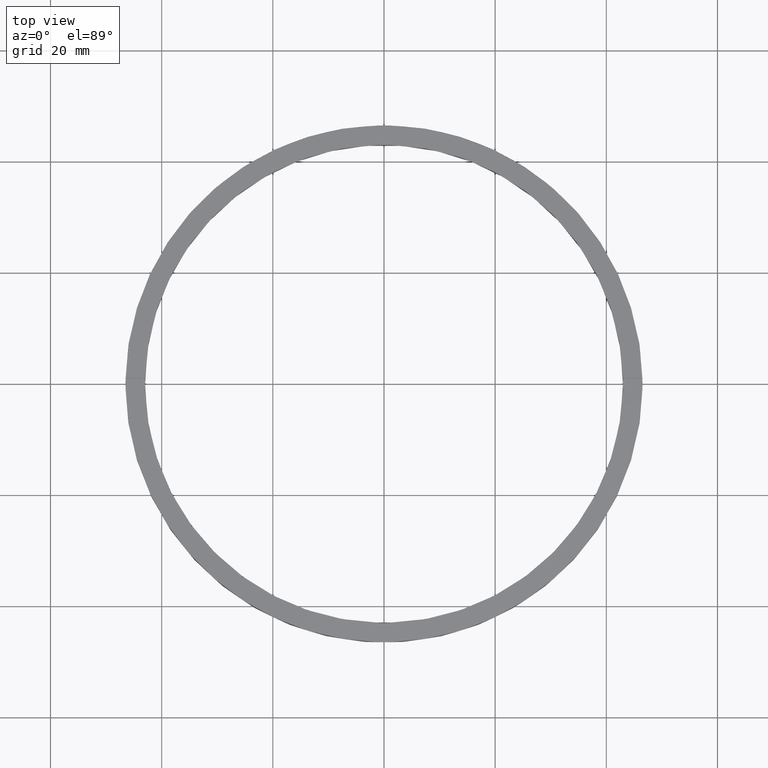
[diagram: clean part render]
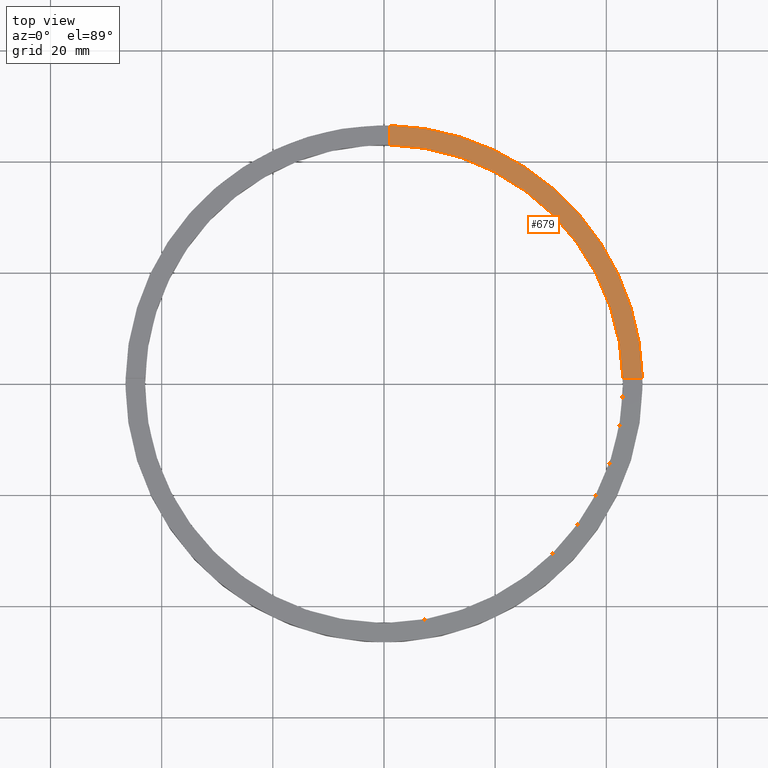
[diagram: same view with one face highlighted and labeled with its STEP entity id]
A machine part, top view. The second image highlights one B-rep face of the part: STEP entity #679.
In plain terms, the highlighted planar face has unit normal (0, 0, 1).
Its self-contained STEP definition (entity closure, byte-faithful):
#39 = CARTESIAN_POINT ( 'NONE',  ( 0.9999999999999735767, 36.50000000000000000, 4.500000000000000000 ) ) ;
#88 = CARTESIAN_POINT ( 'NONE',  ( 0.9999999999999735767, 42.98837052040935447, 4.500000000000000000 ) ) ;
#93 = AXIS2_PLACEMENT_3D ( 'NONE', #142, #281, #331 ) ;
#115 = ORIENTED_EDGE ( 'NONE', *, *, #320, .T. ) ;
#117 = VERTEX_POINT ( 'NONE', #762 ) ;
#139 = DIRECTION ( 'NONE',  ( 0.000000000000000000, 1.000000000000000000, 0.000000000000000000 ) ) ;
#142 = CARTESIAN_POINT ( 'NONE',  ( 0.000000000000000000, 0.000000000000000000, 4.500000000000000000 ) ) ;
#152 = EDGE_CURVE ( 'NONE', #180, #190, #254, .T. ) ;
#180 = VERTEX_POINT ( 'NONE', #274 ) ;
#181 = LINE ( 'NONE', #39, #452 ) ;
#190 = VERTEX_POINT ( 'NONE', #389 ) ;
#192 = DIRECTION ( 'NONE',  ( 0.000000000000000000, 0.000000000000000000, 1.000000000000000000 ) ) ;
#254 = LINE ( 'NONE', #472, #500 ) ;
#274 = CARTESIAN_POINT ( 'NONE',  ( 46.48924606831132422, 0.9999999999998441247, 4.500000000000000000 ) ) ;
#281 = DIRECTION ( 'NONE',  ( 0.000000000000000000, 0.000000000000000000, 1.000000000000000000 ) ) ;
#320 = EDGE_CURVE ( 'NONE', #180, #117, #581, .T. ) ;
#331 = DIRECTION ( 'NONE',  ( 1.000000000000000000, 0.000000000000000000, -0.000000000000000000 ) ) ;
#342 = AXIS2_PLACEMENT_3D ( 'NONE', #498, #192, #609 ) ;
#360 = ORIENTED_EDGE ( 'NONE', *, *, #777, .F. ) ;
#373 = EDGE_LOOP ( 'NONE', ( #360, #666, #742, #115 ) ) ;
#374 = DIRECTION ( 'NONE',  ( 0.000000000000000000, 0.000000000000000000, 1.000000000000000000 ) ) ;
#389 = CARTESIAN_POINT ( 'NONE',  ( 42.98837052040935447, 0.9999999999998439026, 4.500000000000000000 ) ) ;
#452 = VECTOR ( 'NONE', #139, 1000.000000000000000 ) ;
#472 = CARTESIAN_POINT ( 'NONE',  ( 36.49999999999999289, 0.9999999999998434586, 4.500000000000000000 ) ) ;
#498 = CARTESIAN_POINT ( 'NONE',  ( 0.000000000000000000, 0.000000000000000000, 4.500000000000000000 ) ) ;
#500 = VECTOR ( 'NONE', #781, 1000.000000000000000 ) ;
#550 = AXIS2_PLACEMENT_3D ( 'NONE', #648, #374, #780 ) ;
#581 = CIRCLE ( 'NONE', #342, 46.50000000000000000 ) ;
#609 = DIRECTION ( 'NONE',  ( 1.000000000000000000, 0.000000000000000000, 0.000000000000000000 ) ) ;
#618 = EDGE_CURVE ( 'NONE', #190, #712, #723, .T. ) ;
#623 = PLANE ( 'NONE',  #93 ) ;
#648 = CARTESIAN_POINT ( 'NONE',  ( 0.000000000000000000, 0.000000000000000000, 4.500000000000000000 ) ) ;
#666 = ORIENTED_EDGE ( 'NONE', *, *, #618, .F. ) ;
#679 = ADVANCED_FACE ( 'NONE', ( #714 ), #623, .T. ) ;
#712 = VERTEX_POINT ( 'NONE', #88 ) ;
#714 = FACE_OUTER_BOUND ( 'NONE', #373, .T. ) ;
#723 = CIRCLE ( 'NONE', #550, 43.00000000000000000 ) ;
#742 = ORIENTED_EDGE ( 'NONE', *, *, #152, .F. ) ;
#762 = CARTESIAN_POINT ( 'NONE',  ( 0.9999999999999735767, 46.48924606831132422, 4.500000000000000000 ) ) ;
#777 = EDGE_CURVE ( 'NONE', #712, #117, #181, .T. ) ;
#780 = DIRECTION ( 'NONE',  ( 1.000000000000000000, 0.000000000000000000, 0.000000000000000000 ) ) ;
#781 = DIRECTION ( 'NONE',  ( -1.000000000000000000, -6.505213034913025371E-17, -0.000000000000000000 ) ) ;